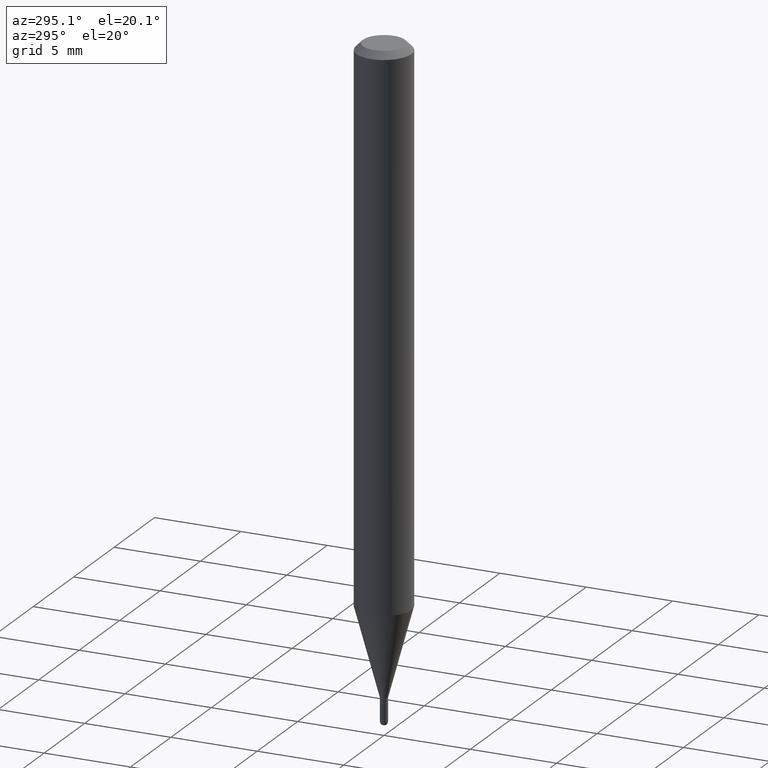
[diagram: clean part render]
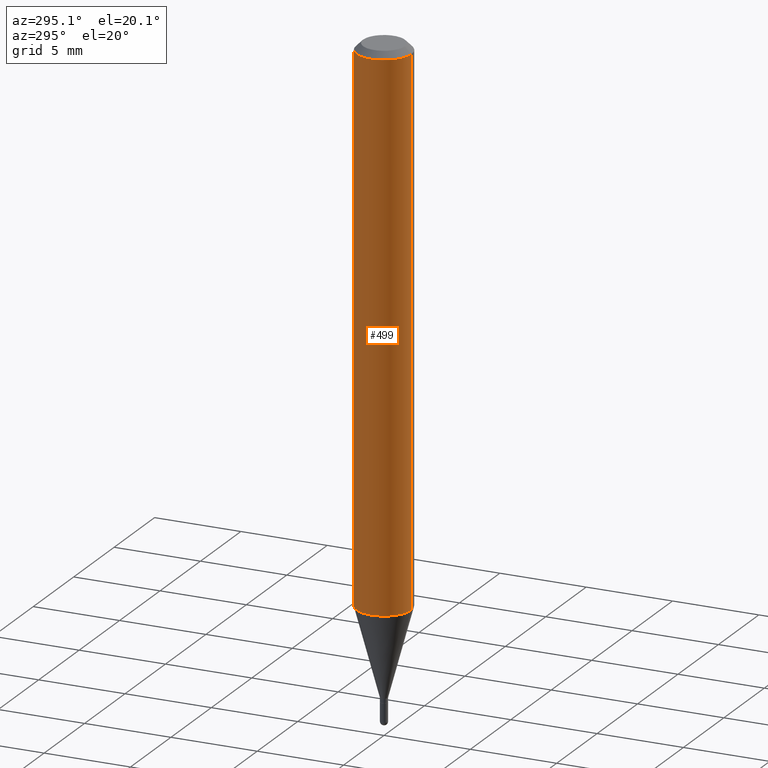
[diagram: same view with one face highlighted and labeled with its STEP entity id]
A machine part, auxiliary view. The second image highlights one B-rep face of the part: STEP entity #499.
In plain terms, the highlighted cylindrical surface (edge-blend (fillet) strip) has radius 1.5875 mm, axis along (-0, 0, 1).
Its self-contained STEP definition (entity closure, byte-faithful):
#13 = ORIENTED_EDGE ( 'NONE', *, *, #132, .T. ) ;
#19 = LINE ( 'NONE', #295, #352 ) ;
#29 = CARTESIAN_POINT ( 'NONE',  ( 4.440892098500930859E-16, 0.06249999999999995143, -0.01499999999999997863 ) ) ;
#35 = AXIS2_PLACEMENT_3D ( 'NONE', #305, #469, #118 ) ;
#37 = EDGE_CURVE ( 'NONE', #288, #427, #460, .T. ) ;
#39 = VERTEX_POINT ( 'NONE', #287 ) ;
#68 = DIRECTION ( 'NONE',  ( -2.445459971718245083E-29, 3.491493990302560829E-15, 1.000000000000000000 ) ) ;
#72 = CARTESIAN_POINT ( 'NONE',  ( -4.364351673553615448E-16, -0.06250000000000432987, -1.237469256391281025 ) ) ;
#83 = CIRCLE ( 'NONE', #35, 0.06250000000000000000 ) ;
#94 = DIRECTION ( 'NONE',  ( -2.445459971718245083E-29, 3.491493990302560829E-15, 1.000000000000000000 ) ) ;
#106 = VECTOR ( 'NONE', #94, 39.37007874015748143 ) ;
#113 = AXIS2_PLACEMENT_3D ( 'NONE', #202, #208, #367 ) ;
#118 = DIRECTION ( 'NONE',  ( -6.982962677686265922E-15, -1.000000000000000000, 4.370956789862821150E-15 ) ) ;
#132 = EDGE_CURVE ( 'NONE', #146, #427, #19, .T. ) ;
#146 = VERTEX_POINT ( 'NONE', #72 ) ;
#163 = LINE ( 'NONE', #366, #106 ) ;
#170 = EDGE_LOOP ( 'NONE', ( #436, #424, #13, #331 ) ) ;
#202 = CARTESIAN_POINT ( 'NONE',  ( 3.668189957577309261E-31, -5.237240985453757895E-17, -0.01499999999999976179 ) ) ;
#208 = DIRECTION ( 'NONE',  ( -2.445459971718245083E-29, 3.491493990302560829E-15, 1.000000000000000000 ) ) ;
#250 = CYLINDRICAL_SURFACE ( 'NONE', #461, 0.06250000000000000000 ) ;
#273 = CARTESIAN_POINT ( 'NONE',  ( -4.364351673553912750E-16, -0.06250000000000005551, -0.01499999999999954321 ) ) ;
#280 = DIRECTION ( 'NONE',  ( -2.445459971718245083E-29, 3.491493990302560829E-15, 1.000000000000000000 ) ) ;
#287 = CARTESIAN_POINT ( 'NONE',  ( 4.440892098500927901E-16, 0.06249999999999569095, -1.237469256391281691 ) ) ;
#288 = VERTEX_POINT ( 'NONE', #29 ) ;
#295 = CARTESIAN_POINT ( 'NONE',  ( -4.364351673553916201E-16, -0.06250000000000000000, 2.182183743939100518E-16 ) ) ;
#305 = CARTESIAN_POINT ( 'NONE',  ( 3.026181532736820880E-29, -4.320616471874337683E-15, -1.237469256391281247 ) ) ;
#322 = FACE_OUTER_BOUND ( 'NONE', #170, .T. ) ;
#331 = ORIENTED_EDGE ( 'NONE', *, *, #37, .F. ) ;
#352 = VECTOR ( 'NONE', #68, 39.37007874015748143 ) ;
#366 = CARTESIAN_POINT ( 'NONE',  ( 4.440892098500625669E-16, 0.06250000000000000000, -2.182183743939100518E-16 ) ) ;
#367 = DIRECTION ( 'NONE',  ( -6.982962677686265922E-15, -1.000000000000000000, 3.483106191921935554E-15 ) ) ;
#411 = EDGE_CURVE ( 'NONE', #39, #146, #83, .T. ) ;
#424 = ORIENTED_EDGE ( 'NONE', *, *, #411, .T. ) ;
#427 = VERTEX_POINT ( 'NONE', #273 ) ;
#436 = ORIENTED_EDGE ( 'NONE', *, *, #491, .F. ) ;
#451 = DIRECTION ( 'NONE',  ( -6.982962677686265922E-15, -1.000000000000000000, 3.491493990302560829E-15 ) ) ;
#460 = CIRCLE ( 'NONE', #113, 0.06250000000000000000 ) ;
#461 = AXIS2_PLACEMENT_3D ( 'NONE', #482, #280, #451 ) ;
#469 = DIRECTION ( 'NONE',  ( -2.445459971718245083E-29, 3.491493990302560829E-15, 1.000000000000000000 ) ) ;
#482 = CARTESIAN_POINT ( 'NONE',  ( 0.000000000000000000, 0.000000000000000000, 0.000000000000000000 ) ) ;
#491 = EDGE_CURVE ( 'NONE', #39, #288, #163, .T. ) ;
#499 = ADVANCED_FACE ( 'NONE', ( #322 ), #250, .T. ) ;